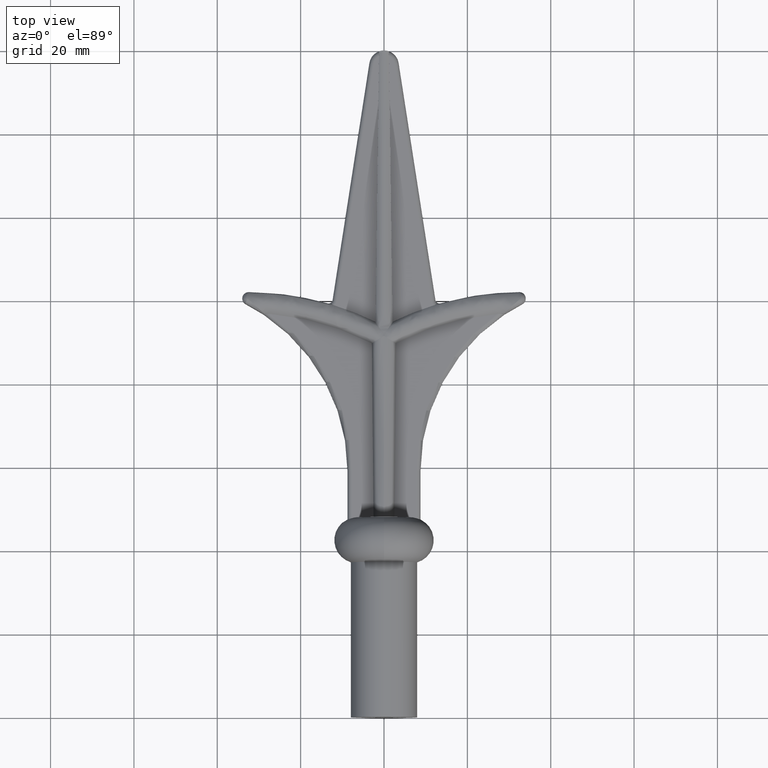
[diagram: clean part render]
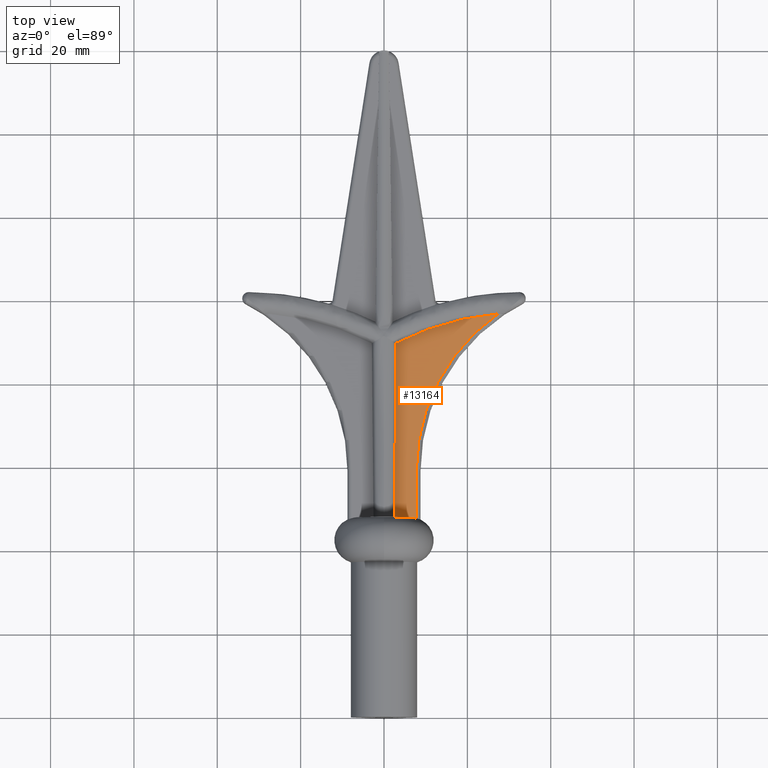
[diagram: same view with one face highlighted and labeled with its STEP entity id]
A machine part, top view. The second image highlights one B-rep face of the part: STEP entity #13164.
In plain terms, the highlighted planar face has unit normal (-0, 0, -1).
Its self-contained STEP definition (entity closure, byte-faithful):
#366 = VECTOR ( 'NONE', #7863, 1000.000000000000000 ) ;
#1565 = CARTESIAN_POINT ( 'NONE',  ( 27.29249189842806089, 96.76877624936842892, 2.500000000000000000 ) ) ;
#1861 = FACE_OUTER_BOUND ( 'NONE', #7487, .T. ) ;
#2248 = CARTESIAN_POINT ( 'NONE',  ( 4.337558076768898675E-16, 48.00000000000000000, 2.500000000000000000 ) ) ;
#2402 = CIRCLE ( 'NONE', #15250, 65.00024480653904391 ) ;
#2437 = DIRECTION ( 'NONE',  ( 0.2708708325666908112, 0.9626157032090365551, 0.000000000000000000 ) ) ;
#2653 = CARTESIAN_POINT ( 'NONE',  ( 7.749999999999986677, 59.13899728303305636, 2.500000000000000000 ) ) ;
#3197 = CARTESIAN_POINT ( 'NONE',  ( 6.596446905709911768, 48.00000000000000000, 2.500000000000000000 ) ) ;
#3266 = VERTEX_POINT ( 'NONE', #8971 ) ;
#3536 = CARTESIAN_POINT ( 'NONE',  ( 53.74999999999997868, 59.13899728303304926, 2.500000000000000000 ) ) ;
#3543 = EDGE_CURVE ( 'NONE', #6657, #7593, #6538, .T. ) ;
#3564 = ORIENTED_EDGE ( 'NONE', *, *, #3543, .T. ) ;
#3747 = B_SPLINE_CURVE_WITH_KNOTS ( 'NONE', 3,
 ( #12828, #3197, #4438, #6762 ),
 .UNSPECIFIED., .F., .F.,
 ( 4, 4 ),
 ( 0.01160549365315997200, 0.01330546013588329406 ),
 .UNSPECIFIED. ) ;
#4438 = CARTESIAN_POINT ( 'NONE',  ( 7.180142572478947827, 47.91857507071454592, 2.500000000000000000 ) ) ;
#4546 = ORIENTED_EDGE ( 'NONE', *, *, #7686, .T. ) ;
#4589 = DIRECTION ( 'NONE',  ( -0.000000000000000000, 0.000000000000000000, -1.000000000000000000 ) ) ;
#5583 = EDGE_CURVE ( 'NONE', #3266, #6657, #10978, .T. ) ;
#6215 = DIRECTION ( 'NONE',  ( -0.000000000000000000, 0.000000000000000000, 1.000000000000000000 ) ) ;
#6538 = LINE ( 'NONE', #2248, #8083 ) ;
#6548 = CARTESIAN_POINT ( 'NONE',  ( 2.500000000000000444, 48.00000000000000000, 2.500000000000000000 ) ) ;
#6657 = VERTEX_POINT ( 'NONE', #6548 ) ;
#6712 = DIRECTION ( 'NONE',  ( -0.009535525539591983499, -0.9999545358428471031, 0.000000000000000000 ) ) ;
#6762 = CARTESIAN_POINT ( 'NONE',  ( 7.749999999999986677, 47.74878401030802877, 2.500000000000000000 ) ) ;
#7217 = EDGE_CURVE ( 'NONE', #10317, #8721, #11908, .T. ) ;
#7487 = EDGE_LOOP ( 'NONE', ( #9728, #15400, #8029, #14441, #3564, #4546 ) ) ;
#7593 = VERTEX_POINT ( 'NONE', #12517 ) ;
#7599 = CARTESIAN_POINT ( 'NONE',  ( 7.749999999999986677, 47.74878401030802877, 2.500000000000000000 ) ) ;
#7686 = EDGE_CURVE ( 'NONE', #7593, #12583, #3747, .T. ) ;
#7863 = DIRECTION ( 'NONE',  ( 0.000000000000000000, 1.000000000000000000, 0.000000000000000000 ) ) ;
#8029 = ORIENTED_EDGE ( 'NONE', *, *, #13745, .T. ) ;
#8083 = VECTOR ( 'NONE', #14591, 1000.000000000000000 ) ;
#8277 = DIRECTION ( 'NONE',  ( -1.000000000000000000, 0.000000000000000000, 0.000000000000000000 ) ) ;
#8459 = DIRECTION ( 'NONE',  ( -1.000000000000000000, 0.000000000000000000, 0.000000000000000000 ) ) ;
#8721 = VERTEX_POINT ( 'NONE', #1565 ) ;
#8971 = CARTESIAN_POINT ( 'NONE',  ( 2.897914937243554867, 89.72783605101008675, 2.500000000000000000 ) ) ;
#9606 = AXIS2_PLACEMENT_3D ( 'NONE', #15483, #4589, #8277 ) ;
#9728 = ORIENTED_EDGE ( 'NONE', *, *, #14472, .T. ) ;
#10317 = VERTEX_POINT ( 'NONE', #2653 ) ;
#10978 = LINE ( 'NONE', #14022, #14031 ) ;
#11908 = CIRCLE ( 'NONE', #13858, 46.00000000000000000 ) ;
#12177 = LINE ( 'NONE', #15233, #366 ) ;
#12326 = CARTESIAN_POINT ( 'NONE',  ( 32.77313493271324774, 32.00000000000002842, 2.500000000000000000 ) ) ;
#12517 = CARTESIAN_POINT ( 'NONE',  ( 6.000000000000027534, 48.00000000000000000, 2.500000000000000000 ) ) ;
#12583 = VERTEX_POINT ( 'NONE', #7599 ) ;
#12828 = CARTESIAN_POINT ( 'NONE',  ( 6.000000000000027534, 48.00000000000000000, 2.500000000000000000 ) ) ;
#13141 = PLANE ( 'NONE',  #9606 ) ;
#13164 = ADVANCED_FACE ( 'NONE', ( #1861 ), #13141, .F. ) ;
#13745 = EDGE_CURVE ( 'NONE', #8721, #3266, #2402, .T. ) ;
#13858 = AXIS2_PLACEMENT_3D ( 'NONE', #3536, #15771, #8459 ) ;
#14022 = CARTESIAN_POINT ( 'NONE',  ( 2.926352546657165377, 92.70998070613148911, 2.500000000000000000 ) ) ;
#14031 = VECTOR ( 'NONE', #6712, 1000.000000000000000 ) ;
#14441 = ORIENTED_EDGE ( 'NONE', *, *, #5583, .T. ) ;
#14472 = EDGE_CURVE ( 'NONE', #12583, #10317, #12177, .T. ) ;
#14591 = DIRECTION ( 'NONE',  ( 1.000000000000000000, 0.000000000000000000, 0.000000000000000000 ) ) ;
#15233 = CARTESIAN_POINT ( 'NONE',  ( 7.749999999999986677, 156.4581150389163895, 2.500000000000000000 ) ) ;
#15250 = AXIS2_PLACEMENT_3D ( 'NONE', #12326, #6215, #2437 ) ;
#15400 = ORIENTED_EDGE ( 'NONE', *, *, #7217, .T. ) ;
#15483 = CARTESIAN_POINT ( 'NONE',  ( 4.337558076768898675E-16, 156.4581150389163895, 2.500000000000000000 ) ) ;
#15771 = DIRECTION ( 'NONE',  ( -0.000000000000000000, -0.000000000000000000, -1.000000000000000000 ) ) ;